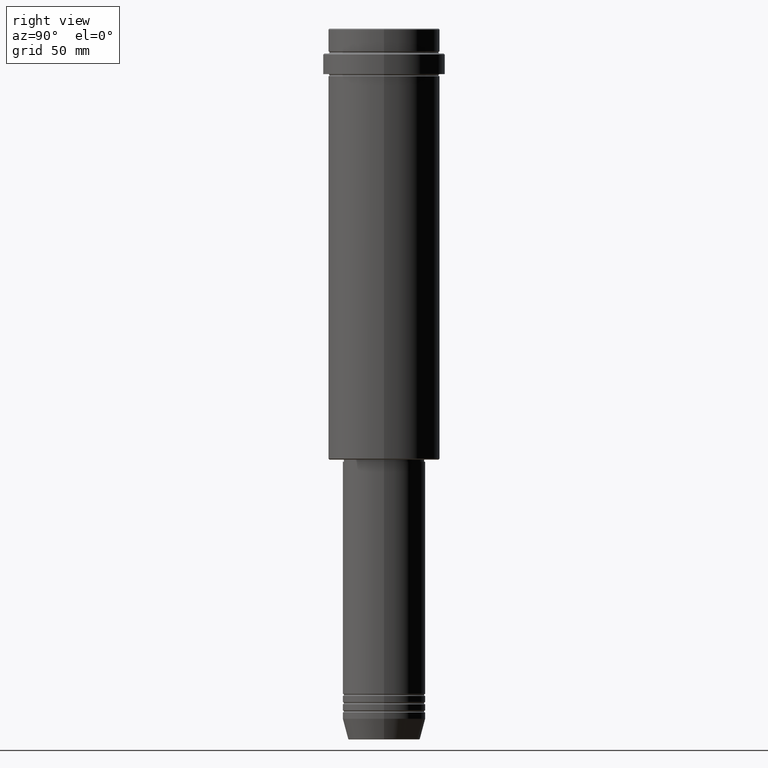
[diagram: clean part render]
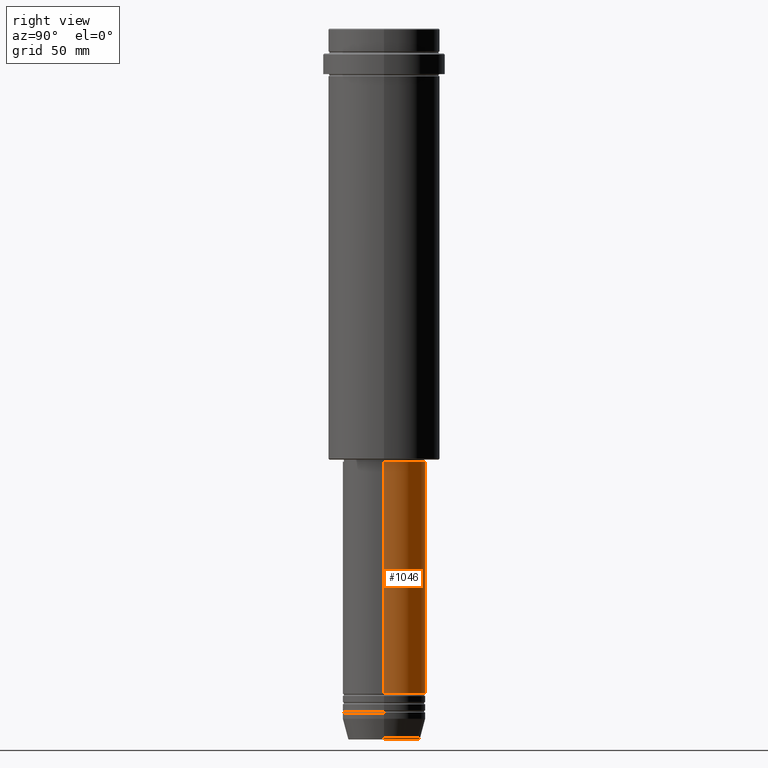
[diagram: same view with one face highlighted and labeled with its STEP entity id]
A machine part, right view. The second image highlights one B-rep face of the part: STEP entity #1046.
In plain terms, the highlighted cylindrical surface (partial cylindrical patch) has radius 20 mm, axis along (-0, -0, 1).
Its self-contained STEP definition (entity closure, byte-faithful):
#22 = DIRECTION ( 'NONE',  ( -0.000000000000000000, -0.000000000000000000, 1.000000000000000000 ) ) ;
#23 = ORIENTED_EDGE ( 'NONE', *, *, #144, .F. ) ;
#25 = CARTESIAN_POINT ( 'NONE',  ( 0.000000000000000000, 0.000000000000000000, 0.000000000000000000 ) ) ;
#34 = AXIS2_PLACEMENT_3D ( 'NONE', #370, #22, #1114 ) ;
#52 = VERTEX_POINT ( 'NONE', #1404 ) ;
#76 = EDGE_LOOP ( 'NONE', ( #91, #871, #23, #571 ) ) ;
#91 = ORIENTED_EDGE ( 'NONE', *, *, #1224, .T. ) ;
#94 = CARTESIAN_POINT ( 'NONE',  ( -20.00000000000000000, 2.449293598294706513E-15, 0.000000000000000000 ) ) ;
#116 = FACE_OUTER_BOUND ( 'NONE', #76, .T. ) ;
#144 = EDGE_CURVE ( 'NONE', #52, #1135, #216, .T. ) ;
#172 = AXIS2_PLACEMENT_3D ( 'NONE', #25, #889, #1100 ) ;
#216 = CIRCLE ( 'NONE', #34, 20.00000000000000000 ) ;
#274 = VERTEX_POINT ( 'NONE', #1144 ) ;
#330 = CYLINDRICAL_SURFACE ( 'NONE', #172, 20.00000000000000000 ) ;
#370 = CARTESIAN_POINT ( 'NONE',  ( 0.000000000000000000, 0.000000000000000000, -208.9999999999999432 ) ) ;
#376 = CIRCLE ( 'NONE', #895, 20.00000000000000000 ) ;
#386 = CARTESIAN_POINT ( 'NONE',  ( 20.00000000000000000, 0.000000000000000000, 0.000000000000000000 ) ) ;
#445 = EDGE_CURVE ( 'NONE', #1116, #1135, #1185, .T. ) ;
#450 = CARTESIAN_POINT ( 'NONE',  ( -20.00000000000000000, 2.449293598294706513E-15, -320.9999999999998863 ) ) ;
#503 = DIRECTION ( 'NONE',  ( -0.000000000000000000, -0.000000000000000000, 1.000000000000000000 ) ) ;
#539 = VECTOR ( 'NONE', #503, 1000.000000000000000 ) ;
#571 = ORIENTED_EDGE ( 'NONE', *, *, #729, .F. ) ;
#726 = CARTESIAN_POINT ( 'NONE',  ( 0.000000000000000000, 0.000000000000000000, -320.9999999999998863 ) ) ;
#729 = EDGE_CURVE ( 'NONE', #274, #52, #920, .T. ) ;
#828 = VECTOR ( 'NONE', #1167, 1000.000000000000000 ) ;
#871 = ORIENTED_EDGE ( 'NONE', *, *, #445, .T. ) ;
#889 = DIRECTION ( 'NONE',  ( -0.000000000000000000, -0.000000000000000000, 1.000000000000000000 ) ) ;
#895 = AXIS2_PLACEMENT_3D ( 'NONE', #726, #1411, #1080 ) ;
#920 = LINE ( 'NONE', #386, #539 ) ;
#1046 = ADVANCED_FACE ( 'NONE', ( #116 ), #330, .T. ) ;
#1080 = DIRECTION ( 'NONE',  ( 1.000000000000000000, 0.000000000000000000, 0.000000000000000000 ) ) ;
#1100 = DIRECTION ( 'NONE',  ( 1.000000000000000000, 0.000000000000000000, 0.000000000000000000 ) ) ;
#1114 = DIRECTION ( 'NONE',  ( 1.000000000000000000, 0.000000000000000000, 0.000000000000000000 ) ) ;
#1116 = VERTEX_POINT ( 'NONE', #450 ) ;
#1135 = VERTEX_POINT ( 'NONE', #1236 ) ;
#1144 = CARTESIAN_POINT ( 'NONE',  ( 20.00000000000000000, 0.000000000000000000, -320.9999999999998863 ) ) ;
#1167 = DIRECTION ( 'NONE',  ( -0.000000000000000000, -0.000000000000000000, 1.000000000000000000 ) ) ;
#1185 = LINE ( 'NONE', #94, #828 ) ;
#1224 = EDGE_CURVE ( 'NONE', #274, #1116, #376, .T. ) ;
#1236 = CARTESIAN_POINT ( 'NONE',  ( -20.00000000000000000, 2.449293598294706513E-15, -208.9999999999999432 ) ) ;
#1404 = CARTESIAN_POINT ( 'NONE',  ( 20.00000000000000000, 0.000000000000000000, -208.9999999999999432 ) ) ;
#1411 = DIRECTION ( 'NONE',  ( -0.000000000000000000, -0.000000000000000000, 1.000000000000000000 ) ) ;